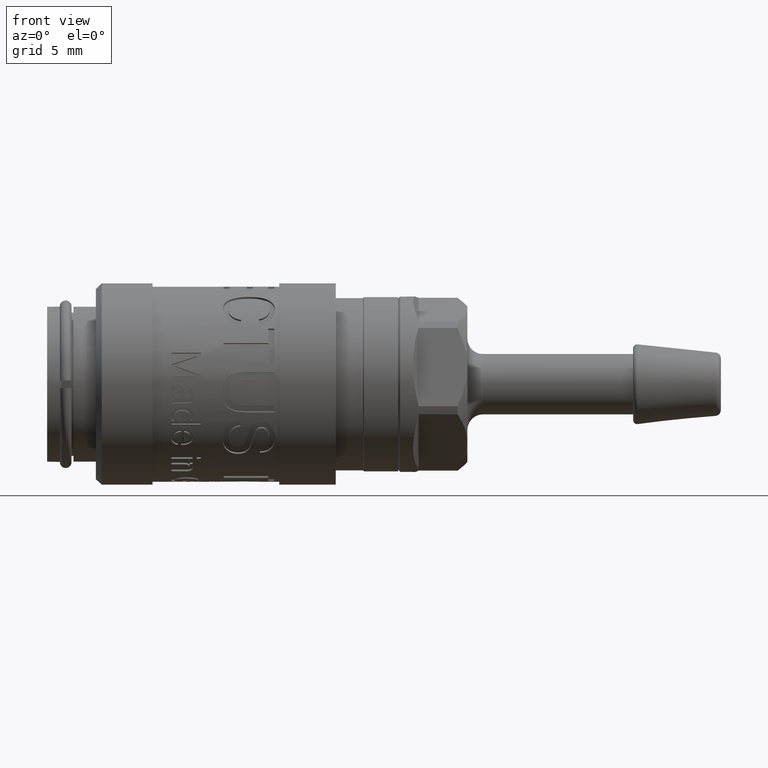
[diagram: clean part render]
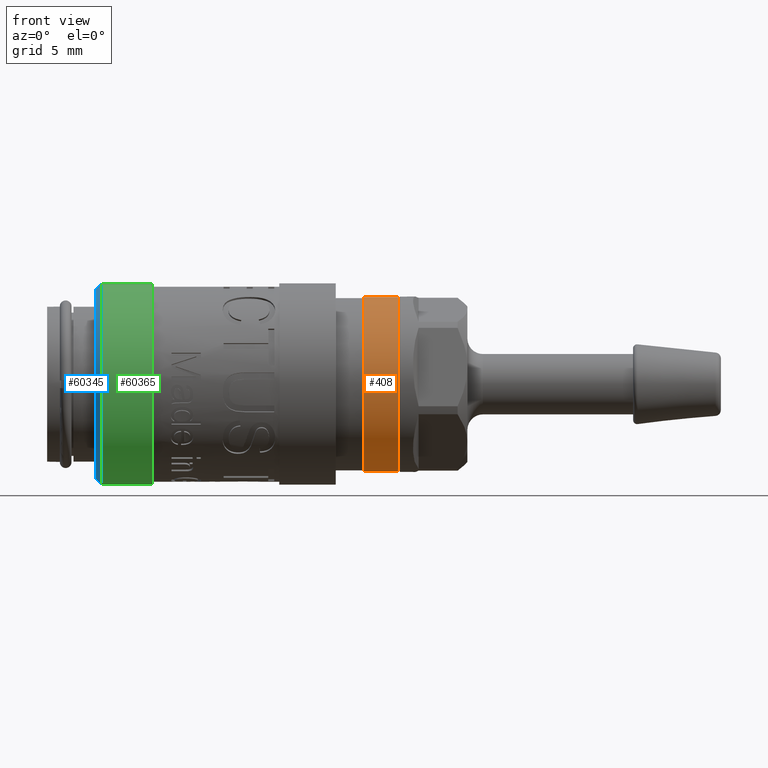
[diagram: same view with three faces highlighted in distinct colors, each labeled with its STEP entity id]
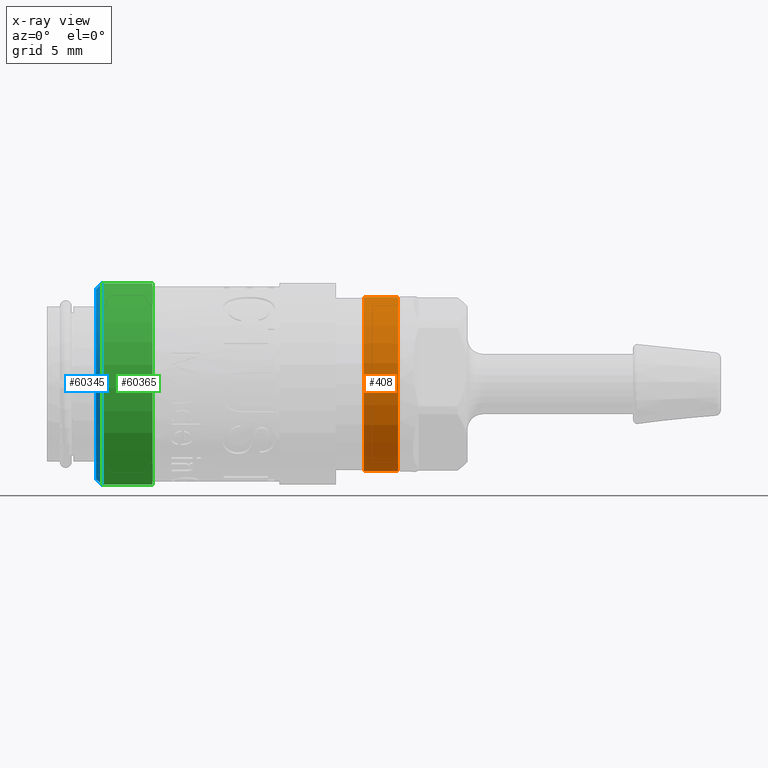
[diagram: x-ray of the same camera — body ghosted, the three highlighted faces saturated]
A machine part, front view with three faces highlighted in distinct colors.
The next image is the same camera in x-ray (body ghosted, the three faces saturated) — at least one of them is partly hidden behind the body in this view.
Their STEP definitions:

[orange] entity #408 — the highlighted cylindrical surface (bore or boss wall) has radius 4.5 mm, axis along (1, 0, 0).
#366=CARTESIAN_POINT('',(18.0,4.5,0.0));
#367=VERTEX_POINT('',#366);
#368=CARTESIAN_POINT('',(18.0,0.0,0.0));
#369=DIRECTION('',(1.0,0.0,0.0));
#370=DIRECTION('',(0.0,1.0,0.0));
#371=AXIS2_PLACEMENT_3D('',#368,#369,#370);
#372=CIRCLE('',#371,4.5);
#373=EDGE_CURVE('',#367,#367,#372,.T.);
#389=CARTESIAN_POINT('',(17.125,0.0,0.0));
#390=DIRECTION('',(1.0,0.0,0.0));
#391=DIRECTION('',(0.0,1.0,0.0));
#392=AXIS2_PLACEMENT_3D('',#389,#390,#391);
#393=CYLINDRICAL_SURFACE('',#392,4.5);
#394=ORIENTED_EDGE('',*,*,#373,.F.);
#395=EDGE_LOOP('',(#394));
#396=FACE_OUTER_BOUND('',#395,.T.);
#397=CARTESIAN_POINT('',(16.25,4.5,0.0));
#398=VERTEX_POINT('',#397);
#399=CARTESIAN_POINT('',(16.25,0.0,0.0));
#400=DIRECTION('',(1.0,0.0,0.0));
#401=DIRECTION('',(0.0,1.0,0.0));
#402=AXIS2_PLACEMENT_3D('',#399,#400,#401);
#403=CIRCLE('',#402,4.5);
#404=EDGE_CURVE('',#398,#398,#403,.T.);
#405=ORIENTED_EDGE('',*,*,#404,.T.);
#406=EDGE_LOOP('',(#405));
#407=FACE_BOUND('',#406,.T.);
#408=ADVANCED_FACE('',(#396,#407),#393,.T.);

[blue] entity #60345 — the highlighted conical surface has half-angle 45 deg.
#60318=CARTESIAN_POINT('',(2.65,0.0,0.0));
#60319=DIRECTION('',(1.0,0.0,0.0));
#60320=DIRECTION('',(0.0,-0.466618801943231,-0.884458531347323));
#60321=AXIS2_PLACEMENT_3D('',#60318,#60319,#60320);
#60322=CONICAL_SURFACE('',#60321,5.025,45.000000000000007);
#60323=CARTESIAN_POINT('',(2.5,2.274766659473252,4.3117353403182));
#60324=VERTEX_POINT('',#60323);
#60325=CARTESIAN_POINT('',(2.5,0.0,0.0));
#60326=DIRECTION('',(1.0,0.0,0.0));
#60327=DIRECTION('',(0.0,-0.466618801943231,-0.884458531347323));
#60328=AXIS2_PLACEMENT_3D('',#60325,#60326,#60327);
#60329=CIRCLE('',#60328,4.874999999999999);
#60330=EDGE_CURVE('',#60324,#60324,#60329,.T.);
#60331=ORIENTED_EDGE('',*,*,#60330,.T.);
#60332=EDGE_LOOP('',(#60331));
#60333=FACE_OUTER_BOUND('',#60332,.T.);
#60334=CARTESIAN_POINT('',(2.8,2.414752300056223,4.577072899722396));
#60335=VERTEX_POINT('',#60334);
#60336=CARTESIAN_POINT('',(2.8,0.0,0.0));
#60337=DIRECTION('',(-1.0,0.0,0.0));
#60338=DIRECTION('',(0.0,-0.466618801943231,-0.884458531347323));
#60339=AXIS2_PLACEMENT_3D('',#60336,#60337,#60338);
#60340=CIRCLE('',#60339,5.175);
#60341=EDGE_CURVE('',#60335,#60335,#60340,.T.);
#60342=ORIENTED_EDGE('',*,*,#60341,.T.);
#60343=EDGE_LOOP('',(#60342));
#60344=FACE_BOUND('',#60343,.T.);
#60345=ADVANCED_FACE('',(#60333,#60344),#60322,.T.);

[green] entity #60365 — the highlighted cylindrical surface (bore or boss wall) has radius 5.175 mm, axis along (1, 0, 0).
#60334=CARTESIAN_POINT('',(2.8,2.414752300056223,4.577072899722396));
#60335=VERTEX_POINT('',#60334);
#60336=CARTESIAN_POINT('',(2.8,0.0,0.0));
#60337=DIRECTION('',(-1.0,0.0,0.0));
#60338=DIRECTION('',(0.0,-0.466618801943231,-0.884458531347323));
#60339=AXIS2_PLACEMENT_3D('',#60336,#60337,#60338);
#60340=CIRCLE('',#60339,5.175);
#60341=EDGE_CURVE('',#60335,#60335,#60340,.T.);
#60346=CARTESIAN_POINT('',(3.95,0.0,0.0));
#60347=DIRECTION('',(1.0,0.0,0.0));
#60348=DIRECTION('',(0.0,0.466618801943231,0.884458531347323));
#60349=AXIS2_PLACEMENT_3D('',#60346,#60347,#60348);
#60350=CYLINDRICAL_SURFACE('',#60349,5.175000000000001);
#60351=CARTESIAN_POINT('',(5.4,2.414752300056223,4.577072899722396));
#60352=VERTEX_POINT('',#60351);
#60353=CARTESIAN_POINT('',(5.4,0.0,0.0));
#60354=DIRECTION('',(1.0,0.0,0.0));
#60355=DIRECTION('',(0.0,0.466618801943231,0.884458531347323));
#60356=AXIS2_PLACEMENT_3D('',#60353,#60354,#60355);
#60357=CIRCLE('',#60356,5.175);
#60358=EDGE_CURVE('',#60352,#60352,#60357,.T.);
#60359=ORIENTED_EDGE('',*,*,#60358,.F.);
#60360=EDGE_LOOP('',(#60359));
#60361=FACE_OUTER_BOUND('',#60360,.T.);
#60362=ORIENTED_EDGE('',*,*,#60341,.F.);
#60363=EDGE_LOOP('',(#60362));
#60364=FACE_BOUND('',#60363,.T.);
#60365=ADVANCED_FACE('',(#60361,#60364),#60350,.T.);